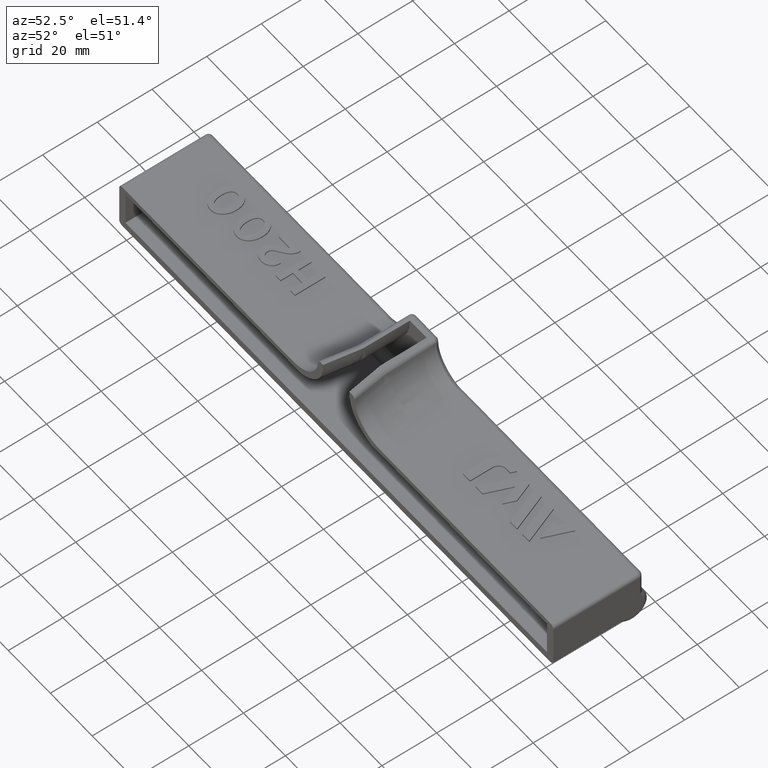
[diagram: clean part render]
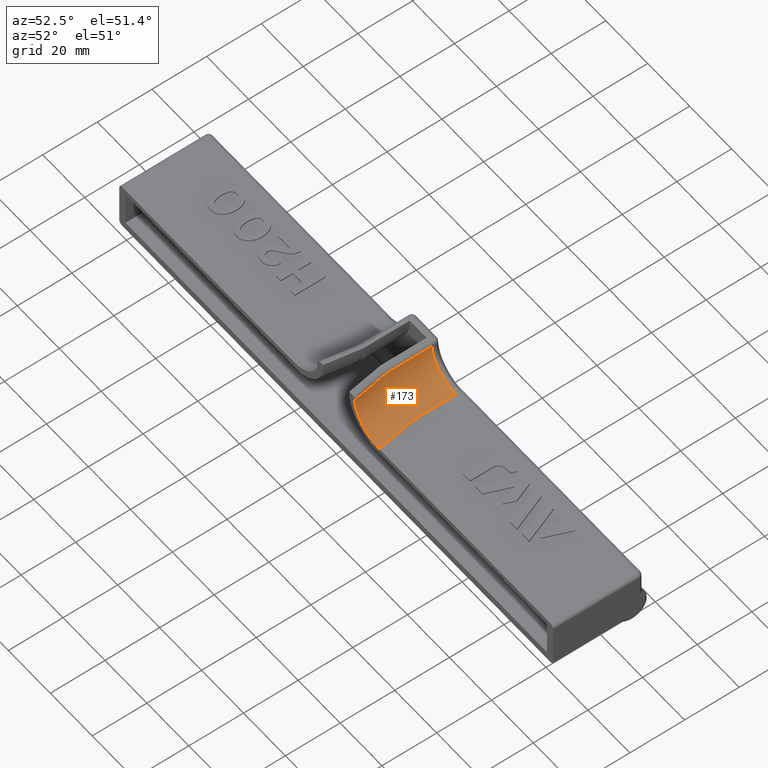
[diagram: same view with one face highlighted and labeled with its STEP entity id]
A machine part, auxiliary view. The second image highlights one B-rep face of the part: STEP entity #173.
In plain terms, the highlighted face is a freeform B-spline surface patch.
Its self-contained STEP definition (entity closure, byte-faithful):
#173=ADVANCED_FACE('',(#363),#364,.F.);
#363=FACE_OUTER_BOUND('',#1299,.T.);
#364=B_SPLINE_SURFACE_WITH_KNOTS('',3,3,((#1300,#1301,#1302,#1303,#1304,#1305,#1306,#1307,#1308,#1309,#1310,#1311,#1312),(#1313,#1314,#1315,#1316,#1317,#1318,#1319,#1320,#1321,#1322,#1323,#1324,#1325),(#1326,#1327,#1328,#1329,#1330,#1331,#1332,#1333,#1334,#1335,#1336,#1337,#1338),(#1339,#1340,#1341,#1342,#1343,#1344,#1345,#1346,#1347,#1348,#1349,#1350,#1351),(#1352,#1353,#1354,#1355,#1356,#1357,#1358,#1359,#1360,#1361,#1362,#1363,#1364),(#1365,#1366,#1367,#1368,#1369,#1370,#1371,#1372,#1373,#1374,#1375,#1376,#1377),(#1378,#1379,#1380,#1381,#1382,#1383,#1384,#1385,#1386,#1387,#1388,#1389,#1390)),.UNSPECIFIED.,.F.,.F.,.F.,(4,1,1,1,4),(4,3,1,1,1,3,4),(0.219521080668852,0.4,0.6,0.8,1.0),(0.164381517754444,1.0,2.0,3.0,4.0,5.0,5.81937807573093),.UNSPECIFIED.);
#1299=EDGE_LOOP('',(#2269,#2270,#2271,#2272,#2273,#2274,#2275));
#1300=CARTESIAN_POINT('',(6.50853555734341,30.0000000308451,19.5593760018382));
#1301=CARTESIAN_POINT('',(6.50853555734341,24.9165911107363,19.5593760018382));
#1302=CARTESIAN_POINT('',(6.50853555734341,19.8331821906274,19.5593760018382));
#1303=CARTESIAN_POINT('',(6.50853555734341,14.7497732705185,19.5593760018382));
#1304=CARTESIAN_POINT('',(6.50853555734341,14.459009232061,19.5593760018382));
#1305=CARTESIAN_POINT('',(6.52122454585878,13.877481087584,19.5593760018382));
#1306=CARTESIAN_POINT('',(6.57828876396107,13.0068493793281,19.5593760018382));
#1307=CARTESIAN_POINT('',(6.67327508911205,12.1395354255359,19.5593760018382));
#1308=CARTESIAN_POINT('',(6.76176017739469,11.5646385805281,19.5593760018382));
#1309=CARTESIAN_POINT('',(6.81225082280391,11.278291901158,19.5593760018382));
#1310=CARTESIAN_POINT('',(7.59247538089636,6.85341854962899,19.5593760018382));
#1311=CARTESIAN_POINT('',(8.37269993898881,2.42854519810002,19.5593760018382));
#1312=CARTESIAN_POINT('',(9.15292449708126,-1.99632815342896,19.5593760018382));
#1313=CARTESIAN_POINT('',(6.56107963782715,30.0000000308451,18.2021272417176));
#1314=CARTESIAN_POINT('',(6.56107963782715,24.9165911107363,18.2021272417176));
#1315=CARTESIAN_POINT('',(6.56107963782715,19.8331821906274,18.2021272417176));
#1316=CARTESIAN_POINT('',(6.56107963782715,14.7497732705185,18.2021272417176));
#1317=CARTESIAN_POINT('',(6.56107963782715,14.4597735760042,18.2021272417176));
#1318=CARTESIAN_POINT('',(6.57373527479495,13.8797737035094,18.2021272417176));
#1319=CARTESIAN_POINT('',(6.6306495129305,13.0114303512766,18.2021272417176));
#1320=CARTESIAN_POINT('',(6.72538617066225,12.1463960319856,18.2021272417176));
#1321=CARTESIAN_POINT('',(6.81363872216282,11.57301003251,18.2021272417176));
#1322=CARTESIAN_POINT('',(6.8639966406392,11.2874160849811,18.2021272417176));
#1323=CARTESIAN_POINT('',(7.64422119873165,6.86254273345218,18.2021272417176));
#1324=CARTESIAN_POINT('',(8.4244457568241,2.43766938192321,18.2021272417176));
#1325=CARTESIAN_POINT('',(9.20467031491655,-1.98720396960578,18.2021272417176));
#1326=CARTESIAN_POINT('',(7.18200140808788,30.0000000308451,15.3600238342147));
#1327=CARTESIAN_POINT('',(7.18200140808788,24.9165911107363,15.3600238342147));
#1328=CARTESIAN_POINT('',(7.18200140808788,19.8331821906274,15.3600238342147));
#1329=CARTESIAN_POINT('',(7.18200140808788,14.7497732705185,15.3600238342147));
#1330=CARTESIAN_POINT('',(7.18200140808788,14.4688059501538,15.3600238342147));
#1331=CARTESIAN_POINT('',(7.19426292450449,13.9068659111536,15.3600238342147));
#1332=CARTESIAN_POINT('',(7.24940482547863,13.065564426621,15.3600238342147));
#1333=CARTESIAN_POINT('',(7.34119112354103,12.2274689114155,15.3600238342147));
#1334=CARTESIAN_POINT('',(7.42669575084074,11.6719368142989,15.3600238342147));
#1335=CARTESIAN_POINT('',(7.47548521400603,11.3952380188606,15.3600238342147));
#1336=CARTESIAN_POINT('',(8.25570977209847,6.97036466733168,15.3600238342147));
#1337=CARTESIAN_POINT('',(9.03593433019092,2.54549131580271,15.3600238342148));
#1338=CARTESIAN_POINT('',(9.81615888828337,-1.87938203572628,15.3600238342148));
#1339=CARTESIAN_POINT('',(9.65657008789855,30.0000000308451,11.6565700878985));
#1340=CARTESIAN_POINT('',(9.65657008789855,24.9165911107362,11.6565700878985));
#1341=CARTESIAN_POINT('',(9.65657008789855,19.8331821906274,11.6565700878985));
#1342=CARTESIAN_POINT('',(9.65657008789855,14.7497732705185,11.6565700878985));
#1343=CARTESIAN_POINT('',(9.65657008789855,14.5048028039371,11.6565700878985));
#1344=CARTESIAN_POINT('',(9.66726090987548,14.0148368854601,11.6565700878985));
#1345=CARTESIAN_POINT('',(9.71533948944625,13.2813057547138,11.6565700878985));
#1346=CARTESIAN_POINT('',(9.79536767564722,12.5505698523517,11.6565700878985));
#1347=CARTESIAN_POINT('',(9.86992096014068,12.0661911753698,11.6565700878985));
#1348=CARTESIAN_POINT('',(9.91245963524476,11.8249423606214,11.6565700878985));
#1349=CARTESIAN_POINT('',(10.6926841933372,7.40006900909243,11.6565700878986));
#1350=CARTESIAN_POINT('',(11.4729087514297,2.97519565756346,11.6565700878986));
#1351=CARTESIAN_POINT('',(12.2531333095221,-1.44967769396551,11.6565700878986));
#1352=CARTESIAN_POINT('',(13.4845682697276,30.0000000308451,9.09878347680646));
#1353=CARTESIAN_POINT('',(13.4845682697276,24.9165911107362,9.09878347680646));
#1354=CARTESIAN_POINT('',(13.4845682697276,19.8331821906274,9.09878347680647));
#1355=CARTESIAN_POINT('',(13.4845682697276,14.7497732705185,9.09878347680648));
#1356=CARTESIAN_POINT('',(13.4845682697276,14.5604876155805,9.09878347680648));
#1357=CARTESIAN_POINT('',(13.4928293286883,14.1818610204975,9.09878347680646));
#1358=CARTESIAN_POINT('',(13.5299814055071,13.6150436777799,9.09878347680648));
#1359=CARTESIAN_POINT('',(13.5918205508484,13.0503861736937,9.09878347680645));
#1360=CARTESIAN_POINT('',(13.6494328141881,12.6760772495253,9.09878347680648));
#1361=CARTESIAN_POINT('',(13.6823019232266,12.4896672690083,9.09878347680648));
#1362=CARTESIAN_POINT('',(14.4625264813191,8.06479391747937,9.0987834768065));
#1363=CARTESIAN_POINT('',(15.2427510394115,3.6399205659504,9.09878347680649));
#1364=CARTESIAN_POINT('',(16.022975597504,-0.784952785578574,9.09878347680649));
#1365=CARTESIAN_POINT('',(16.4948560899092,30.0000000308451,8.5));
#1366=CARTESIAN_POINT('',(16.4948560899092,24.9165911107362,8.5));
#1367=CARTESIAN_POINT('',(16.4948560899092,19.8331821906274,8.5));
#1368=CARTESIAN_POINT('',(16.4948560899092,14.7497732705185,8.5));
#1369=CARTESIAN_POINT('',(16.4948560899092,14.6042774248481,8.5));
#1370=CARTESIAN_POINT('',(16.5012064149389,14.3132066208601,8.5));
#1371=CARTESIAN_POINT('',(16.5297660325692,13.8774908256672,8.5));
#1372=CARTESIAN_POINT('',(16.5773015535198,13.4434352068949,8.5));
#1373=CARTESIAN_POINT('',(16.6215916188809,13.1556837000832,8.5));
#1374=CARTESIAN_POINT('',(16.6468567073397,13.0123982632358,8.5));
#1375=CARTESIAN_POINT('',(17.4270812654321,8.58752491170686,8.5));
#1376=CARTESIAN_POINT('',(18.2073058235246,4.16265156017789,8.5));
#1377=CARTESIAN_POINT('',(18.987530381617,-0.262221791351077,8.5));
#1378=CARTESIAN_POINT('',(18.0,30.0000000308451,8.5));
#1379=CARTESIAN_POINT('',(18.0,24.9165911107363,8.5));
#1380=CARTESIAN_POINT('',(18.0,19.8331821906274,8.5));
#1381=CARTESIAN_POINT('',(18.0,14.7497732705185,8.5));
#1382=CARTESIAN_POINT('',(18.0,14.6261723294818,8.5));
#1383=CARTESIAN_POINT('',(18.0053949580643,14.3788794210415,8.5));
#1384=CARTESIAN_POINT('',(18.0296583461003,14.0087143996109,8.5));
#1385=CARTESIAN_POINT('',(18.0700420548555,13.6399597234955,8.5));
#1386=CARTESIAN_POINT('',(18.1076710212273,13.3954869253621,8.5));
#1387=CARTESIAN_POINT('',(18.1291340993962,13.2737637603496,8.5));
#1388=CARTESIAN_POINT('',(18.9093586574887,8.84889040882061,8.5));
#1389=CARTESIAN_POINT('',(19.6895832155812,4.42401705729164,8.5));
#1390=CARTESIAN_POINT('',(20.4698077736736,-0.000856294237331801,8.5));
#2269=ORIENTED_EDGE('',*,*,#3029,.F.);
#2270=ORIENTED_EDGE('',*,*,#3005,.T.);
#2271=ORIENTED_EDGE('',*,*,#3007,.F.);
#2272=ORIENTED_EDGE('',*,*,#2927,.F.);
#2273=ORIENTED_EDGE('',*,*,#2926,.T.);
#2274=ORIENTED_EDGE('',*,*,#3031,.F.);
#2275=ORIENTED_EDGE('',*,*,#3030,.F.);
#2926=EDGE_CURVE('',#3251,#3249,#3252,.F.);
#2927=EDGE_CURVE('',#3251,#3253,#3254,.T.);
#3005=EDGE_CURVE('',#3271,#3388,#3391,.T.);
#3007=EDGE_CURVE('',#3253,#3388,#3393,.T.);
#3029=EDGE_CURVE('',#3271,#3428,#3429,.T.);
#3030=EDGE_CURVE('',#3428,#3430,#3431,.T.);
#3031=EDGE_CURVE('',#3430,#3249,#3432,.T.);
#3249=VERTEX_POINT('',#3824);
#3251=VERTEX_POINT('',#3827);
#3252=B_SPLINE_CURVE_WITH_KNOTS('',3,(#3828,#3829,#3830,#3831,#3832,#3833),.UNSPECIFIED.,.F.,.F.,(4,2,4),(0.0273969199074276,0.166666666666667,0.167968750000001),.UNSPECIFIED.);
#3253=VERTEX_POINT('',#3834);
#3254=B_SPLINE_CURVE_WITH_KNOTS('',2,(#3835,#3836,#3837,#3838,#3839,#3840,#3841),.UNSPECIFIED.,.F.,.F.,(3,2,2,3),(0.0,0.5,0.75,1.0),.UNSPECIFIED.);
#3271=VERTEX_POINT('',#3913);
#3388=VERTEX_POINT('',#4464);
#3391=B_SPLINE_CURVE_WITH_KNOTS('',3,(#4480,#4481,#4482,#4483,#4484,#4485,#4486,#4487,#4488,#4489,#4490,#4491,#4492),.UNSPECIFIED.,.F.,.F.,(4,3,1,1,1,3,4),(0.0,0.0045600856410062,0.0100172239728142,0.0154743623046222,0.0209315006364302,0.0263886389682382,0.0301876525151931),.UNSPECIFIED.);
#3393=B_SPLINE_CURVE_WITH_KNOTS('',3,(#4509,#4510,#4511,#4512,#4513,#4514,#4515,#4516,#4517,#4518,#4519,#4520,#4521,#4522,#4523,#4524,#4525,#4526,#4527,#4528,#4529,#4530,#4531,#4532,#4533,#4534),.UNSPECIFIED.,.F.,.F.,(4,2,2,2,2,2,2,2,2,2,2,2,4),(0.0,0.00220836837548587,0.0033125525632288,0.00441673675097173,0.00662510512645759,0.00772928931420053,0.00883347350194346,0.0110418418774293,0.0121460260651723,0.0132502102529152,0.0143543944406581,0.015458578628401,0.0176669470038869),.UNSPECIFIED.);
#3428=VERTEX_POINT('',#4675);
#3429=B_SPLINE_CURVE_WITH_KNOTS('',3,(#4676,#4677,#4678,#4679,#4680,#4681),.UNSPECIFIED.,.F.,.F.,(4,2,4),(0.0676743831922013,0.168831168831162,1.0),.UNSPECIFIED.);
#3430=VERTEX_POINT('',#4682);
#3431=B_SPLINE_CURVE_WITH_KNOTS('',3,(#4683,#4684,#4685,#4686),.UNSPECIFIED.,.F.,.F.,(4,4),(0.0,1.0),.UNSPECIFIED.);
#3432=B_SPLINE_CURVE_WITH_KNOTS('',3,(#4687,#4688,#4689,#4690),.UNSPECIFIED.,.F.,.F.,(4,4),(0.0,1.0),.UNSPECIFIED.);
#3824=CARTESIAN_POINT('',(18.0,30.0,8.5));
#3827=CARTESIAN_POINT('',(18.0000004939221,14.7468763652125,8.5));
#3828=CARTESIAN_POINT('',(18.0,30.0,8.5));
#3829=CARTESIAN_POINT('',(18.0,24.9165910901729,8.5));
#3830=CARTESIAN_POINT('',(18.0,19.8331821803457,8.5));
#3831=CARTESIAN_POINT('',(18.0,14.7488076381667,8.5));
#3832=CARTESIAN_POINT('',(18.0000001646411,14.7478420030369,8.5));
#3833=CARTESIAN_POINT('',(18.0000004939221,14.7468763652125,8.5));
#3834=CARTESIAN_POINT('',(20.4696567858962,0.0,8.5));
#3835=CARTESIAN_POINT('',(18.0000004939221,14.7468763652125,8.49999999999998));
#3836=CARTESIAN_POINT('',(18.0001526735444,14.3005997851463,8.49999999999998));
#3837=CARTESIAN_POINT('',(18.0470909684913,13.8562804685595,8.49999999999999));
#3838=CARTESIAN_POINT('',(18.0704759618041,13.6349174160912,8.49999999999999));
#3839=CARTESIAN_POINT('',(18.1056079267218,13.4140423875473,8.49999999999999));
#3840=CARTESIAN_POINT('',(18.1167411957091,13.3440474097226,8.49999999999999));
#3841=CARTESIAN_POINT('',(20.4696567858961,-1.38777878078145E-14,8.5));
#3913=CARTESIAN_POINT('',(6.50858178364869,30.0,19.558183556079));
#4464=CARTESIAN_POINT('',(8.80096492070437,1.04083408558608E-14,19.5581835560791));
#4480=CARTESIAN_POINT('',(6.50858178365814,30.0,19.5581835558355));
#4481=CARTESIAN_POINT('',(6.50858178365814,24.9165910901729,19.5581835558355));
#4482=CARTESIAN_POINT('',(6.50858178365814,19.8331821803457,19.5581835558355));
#4483=CARTESIAN_POINT('',(6.50858178365814,14.7497732705185,19.5581835558355));
#4484=CARTESIAN_POINT('',(6.50858178365814,14.4590099045022,19.5581835558355));
#4485=CARTESIAN_POINT('',(6.52127074283207,13.8774831045417,19.5581835558355));
#4486=CARTESIAN_POINT('',(6.57833482898759,13.0068534094957,19.5581835558355));
#4487=CARTESIAN_POINT('',(6.67332093449053,12.1395414612406,19.5581835558355));
#4488=CARTESIAN_POINT('',(6.76180581819601,11.5646459454181,19.5581835558355));
#4489=CARTESIAN_POINT('',(6.81229634683705,11.2782999282733,19.5581835558355));
#4490=CARTESIAN_POINT('',(7.47518587146259,7.5188666188494,19.5581835558355));
#4491=CARTESIAN_POINT('',(8.13807539608814,3.75943330942552,19.5581835558355));
#4492=CARTESIAN_POINT('',(8.80096492071368,1.63671159958412E-12,19.5581835558355));
#4509=CARTESIAN_POINT('',(20.4696567858961,0.0,8.5));
#4510=CARTESIAN_POINT('',(19.7230095077666,-6.50001356230692E-31,8.5));
#4511=CARTESIAN_POINT('',(18.9883379713394,1.05999560096348E-14,8.5705692213988));
#4512=CARTESIAN_POINT('',(17.9032428215447,1.0801300711406E-14,8.77608098110873));
#4513=CARTESIAN_POINT('',(17.5443899480178,2.28681967942509E-14,8.86135258118468));
#4514=CARTESIAN_POINT('',(16.832516012429,2.30689501770575E-14,9.06626078391051));
#4515=CARTESIAN_POINT('',(16.4777301882771,4.11971031493773E-15,9.18668959078996));
#4516=CARTESIAN_POINT('',(15.4418551055674,4.51935873304971E-15,9.59460918812214));
#4517=CARTESIAN_POINT('',(14.7856480729425,3.36264845372464E-14,9.92859582397051));
#4518=CARTESIAN_POINT('',(13.8511283629237,3.42053436483486E-14,10.5194350837088));
#4519=CARTESIAN_POINT('',(13.5479926146462,1.62385538575048E-14,10.7314886246753));
#4520=CARTESIAN_POINT('',(12.9590937916178,1.66847788887756E-14,11.1869487912274));
#4521=CARTESIAN_POINT('',(12.6752423946245,3.11469797555501E-14,11.4291000325871));
#4522=CARTESIAN_POINT('',(11.8676472158227,3.18905004759907E-14,12.1880087612218));
#4523=CARTESIAN_POINT('',(11.3825581444365,5.50399063815243E-14,12.7410517968791));
#4524=CARTESIAN_POINT('',(10.7340334659296,5.59211353090015E-14,13.6405187607475));
#4525=CARTESIAN_POINT('',(10.5304330528912,2.33039749258477E-14,13.9533589841238));
#4526=CARTESIAN_POINT('',(10.1548666273951,2.39346605789633E-14,14.5970973951939));
#4527=CARTESIAN_POINT('',(9.9832157308095,1.56470896529095E-14,14.9271294548665));
#4528=CARTESIAN_POINT('',(9.67257126547654,1.63099593389044E-14,15.6037179840346));
#4529=CARTESIAN_POINT('',(9.53346077501208,2.00065887242771E-14,15.9513242442341));
#4530=CARTESIAN_POINT('',(9.292194023859,2.06930542100378E-14,16.6519969151202));
#4531=CARTESIAN_POINT('',(9.18934518462752,2.0779600556735E-14,17.0062198683124));
#4532=CARTESIAN_POINT('',(8.93279149064112,2.18318542950163E-14,18.0802511962451));
#4533=CARTESIAN_POINT('',(8.83036659017139,2.29026978537103E-14,18.8122717442521));
#4534=CARTESIAN_POINT('',(8.80096492070436,2.36334851892473E-14,19.5581835560791));
#4675=CARTESIAN_POINT('',(8.43871476082185,30.0,13.6113534521321));
#4676=CARTESIAN_POINT('',(6.50858178364869,30.0,19.558183556079));
#4677=CARTESIAN_POINT('',(6.5174638294593,30.0,19.3293724801317));
#4678=CARTESIAN_POINT('',(6.53322326800597,30.0,19.1008209172339));
#4679=CARTESIAN_POINT('',(6.74111924003802,30.0,17.0004533290125));
#4680=CARTESIAN_POINT('',(7.39325158042857,30.0,15.1759996725631));
#4681=CARTESIAN_POINT('',(8.43871476082406,30.0,13.6113534521289));
#4682=CARTESIAN_POINT('',(12.5792115664303,30.0,9.85822949044588));
#4683=CARTESIAN_POINT('',(8.43871476082404,30.0,13.6113534521289));
#4684=CARTESIAN_POINT('',(9.48417794121952,30.0,12.0467072316947));
#4685=CARTESIAN_POINT('',(10.9201930900513,30.0,10.7460273224785));
#4686=CARTESIAN_POINT('',(12.5792117382775,30.0,9.85822939848452));
#4687=CARTESIAN_POINT('',(12.5792117382774,30.0,9.85822939848458));
#4688=CARTESIAN_POINT('',(14.2382303865037,30.0,8.97043147449053));
#4689=CARTESIAN_POINT('',(16.1178413303105,30.0,8.5));
#4690=CARTESIAN_POINT('',(18.0,30.0,8.5));